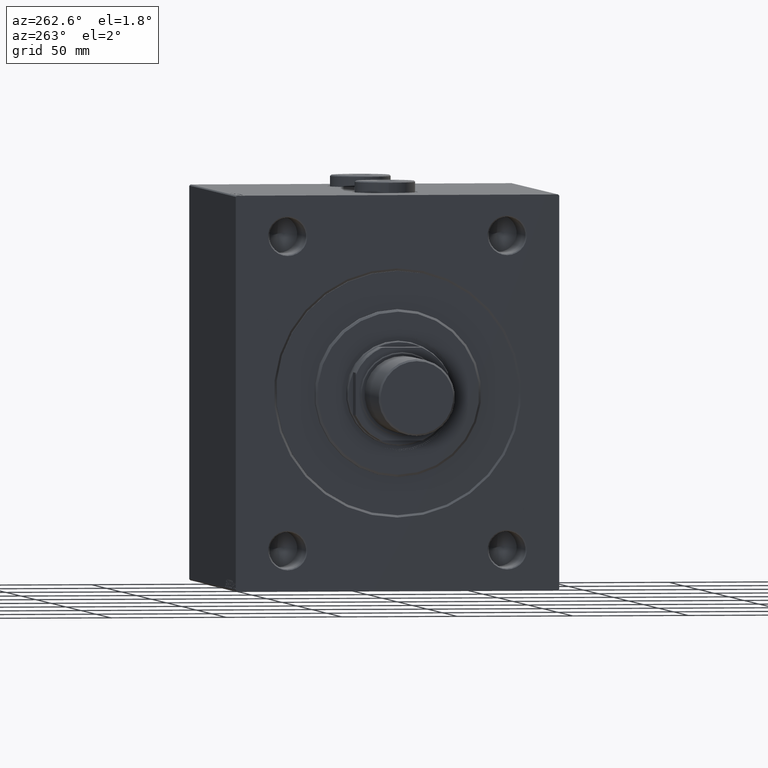
[diagram: clean part render]
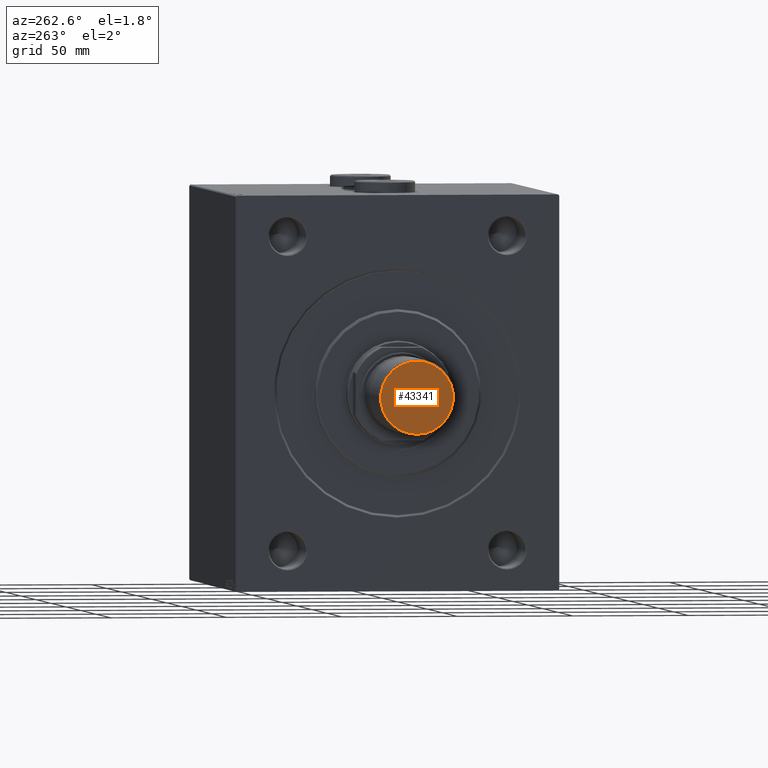
[diagram: same view with one face highlighted and labeled with its STEP entity id]
A machine part, auxiliary view. The second image highlights one B-rep face of the part: STEP entity #43341.
In plain terms, the highlighted planar face has unit normal (1, 0, 0).
Its self-contained STEP definition (entity closure, byte-faithful):
#683 = DIRECTION ( 'NONE',  ( 0.000000000000000000, 0.000000000000000000, 1.000000000000000000 ) ) ;
#1788 = ORIENTED_EDGE ( 'NONE', *, *, #29013, .T. ) ;
#3155 = DIRECTION ( 'NONE',  ( -0.000000000000000000, -0.000000000000000000, -1.000000000000000000 ) ) ;
#4546 = CIRCLE ( 'NONE', #41853, 15.69999999999999929 ) ;
#9594 = CARTESIAN_POINT ( 'NONE',  ( 15.69999999999999929, 0.000000000000000000, 0.000000000000000000 ) ) ;
#11629 = FACE_OUTER_BOUND ( 'NONE', #13443, .T. ) ;
#11729 = AXIS2_PLACEMENT_3D ( 'NONE', #31369, #13397, #45629 ) ;
#13397 = DIRECTION ( 'NONE',  ( -0.000000000000000000, -0.000000000000000000, -1.000000000000000000 ) ) ;
#13443 = EDGE_LOOP ( 'NONE', ( #28634, #1788 ) ) ;
#18086 = CARTESIAN_POINT ( 'NONE',  ( 0.000000000000000000, 0.000000000000000000, 0.000000000000000000 ) ) ;
#19131 = VERTEX_POINT ( 'NONE', #38182 ) ;
#21934 = PLANE ( 'NONE',  #38875 ) ;
#28634 = ORIENTED_EDGE ( 'NONE', *, *, #38244, .T. ) ;
#29013 = EDGE_CURVE ( 'NONE', #19131, #31287, #35598, .T. ) ;
#31287 = VERTEX_POINT ( 'NONE', #9594 ) ;
#31369 = CARTESIAN_POINT ( 'NONE',  ( 0.000000000000000000, 0.000000000000000000, 0.000000000000000000 ) ) ;
#35579 = DIRECTION ( 'NONE',  ( 1.000000000000000000, 0.000000000000000000, 0.000000000000000000 ) ) ;
#35598 = CIRCLE ( 'NONE', #11729, 15.69999999999999929 ) ;
#35700 = CARTESIAN_POINT ( 'NONE',  ( 0.000000000000000000, 0.000000000000000000, 0.000000000000000000 ) ) ;
#38182 = CARTESIAN_POINT ( 'NONE',  ( -15.69999999999999929, 1.971681346627238883E-15, 0.000000000000000000 ) ) ;
#38244 = EDGE_CURVE ( 'NONE', #31287, #19131, #4546, .T. ) ;
#38875 = AXIS2_PLACEMENT_3D ( 'NONE', #35700, #683, #43420 ) ;
#41853 = AXIS2_PLACEMENT_3D ( 'NONE', #18086, #3155, #35579 ) ;
#43341 = ADVANCED_FACE ( 'NONE', ( #11629 ), #21934, .F. ) ;
#43420 = DIRECTION ( 'NONE',  ( 1.000000000000000000, 0.000000000000000000, -0.000000000000000000 ) ) ;
#45629 = DIRECTION ( 'NONE',  ( 1.000000000000000000, 0.000000000000000000, 0.000000000000000000 ) ) ;